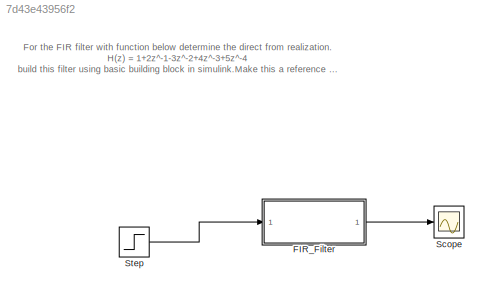
MODEL slx_7d43e43956f2
KIND model
CONFIG AbsTol = auto
CONFIG EnableMultiTasking = off
CONFIG FixedStep = auto
CONFIG MaxStep = auto
CONFIG MinStep = auto
CONFIG RelTol = 1e-3
CONFIG SampleTimeConstraint = Unconstrained
CONFIG Solver = VariableStepAuto
CONFIG SolverName = VariableStepAuto
CONFIG StartTime = 0.0
CONFIG StopTime = 10.0
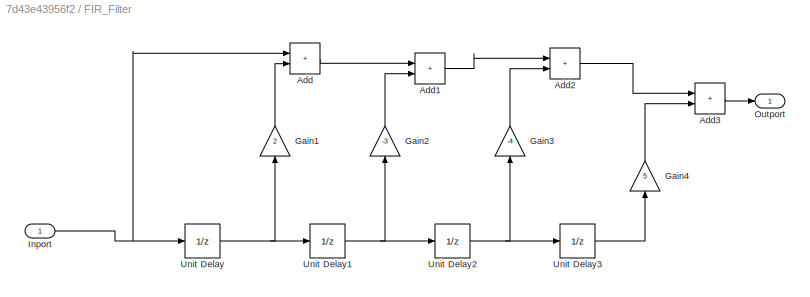
BLOCK [SubSystem] FIR_Filter
  Ports = [1, 1]
  RequestExecContextInheritance = off
BLOCK [Sum] FIR_Filter/Add
  IconShape = rectangular
  Ports = [2, 1]
BLOCK [Sum] FIR_Filter/Add1
  IconShape = rectangular
  Ports = [2, 1]
BLOCK [Sum] FIR_Filter/Add2
  IconShape = rectangular
  Ports = [2, 1]
BLOCK [Sum] FIR_Filter/Add3
  IconShape = rectangular
  Ports = [2, 1]
BLOCK [Gain] FIR_Filter/Gain1
  Gain = 2
  NameLocation = right
BLOCK [Gain] FIR_Filter/Gain2
  Gain = -3
  NameLocation = right
BLOCK [Gain] FIR_Filter/Gain3
  Gain = -4
  NameLocation = right
BLOCK [Gain] FIR_Filter/Gain4
  Gain = 5
  NameLocation = right
BLOCK [Inport] FIR_Filter/Inport
BLOCK [Outport] FIR_Filter/Outport
BLOCK [UnitDelay] FIR_Filter/Unit Delay
  HasFrameUpgradeWarning = on
  SampleTime = -1
BLOCK [UnitDelay] FIR_Filter/Unit Delay1
  HasFrameUpgradeWarning = on
  SampleTime = -1
BLOCK [UnitDelay] FIR_Filter/Unit Delay2
  HasFrameUpgradeWarning = on
  SampleTime = -1
BLOCK [UnitDelay] FIR_Filter/Unit Delay3
  HasFrameUpgradeWarning = on
  SampleTime = -1
BLOCK [Scope] Scope
  Floating = off
  NumInputPorts = 1
  Ports = [1]
  ScopeSpecificationString = Simulink.scopes.TimeScopeBlockCfg('CurrentConfiguration', extmgr.ConfigurationSet(extmgr.Configuration('Core','General UI',true),extmgr.Configuration('Core','Source UI',true),extmgr.Configuration('Sources','WiredSimulink',true),extmgr.Configuration('Visuals','Time Domain',true,'SerializedDisplays',{struct('MinYLimReal','-0.5','MaxYLimReal','4.5','YLabelReal','','MinYLimMag','0.00000','MaxYLimMag',...<+1409ch>
BLOCK [Step] Step
  SampleTime = 0
ANNOTATION (root): For the FIR filter with function below determine the direct from realization. H(z) = 1+2z^-1-3z^-2+4z^-3+5z^-4 build this filter using basic building block in simulink.Make this a reference model.
LINE FIR_Filter/Add1:1 -> FIR_Filter/Add2:1
LINE FIR_Filter/Add2:1 -> FIR_Filter/Add3:1
LINE FIR_Filter/Add3:1 -> FIR_Filter/Outport:1
LINE FIR_Filter/Add:1 -> FIR_Filter/Add1:1
LINE FIR_Filter/Gain1:1 -> FIR_Filter/Add:2
LINE FIR_Filter/Gain2:1 -> FIR_Filter/Add1:2
LINE FIR_Filter/Gain3:1 -> FIR_Filter/Add2:2
LINE FIR_Filter/Gain4:1 -> FIR_Filter/Add3:2
NET FIR_Filter/Inport:1 -> FIR_Filter/Add:1, FIR_Filter/Unit Delay:1
NET FIR_Filter/Unit Delay1:1 -> FIR_Filter/Gain2:1, FIR_Filter/Unit Delay2:1
NET FIR_Filter/Unit Delay2:1 -> FIR_Filter/Gain3:1, FIR_Filter/Unit Delay3:1
LINE FIR_Filter/Unit Delay3:1 -> FIR_Filter/Gain4:1
NET FIR_Filter/Unit Delay:1 -> FIR_Filter/Gain1:1, FIR_Filter/Unit Delay1:1
LINE FIR_Filter:1 -> Scope:1
LINE Step:1 -> FIR_Filter:1
note: NET lines group one-source signal fan-out (src -> all destinations, sorted); 1:1 wires keep LINE
